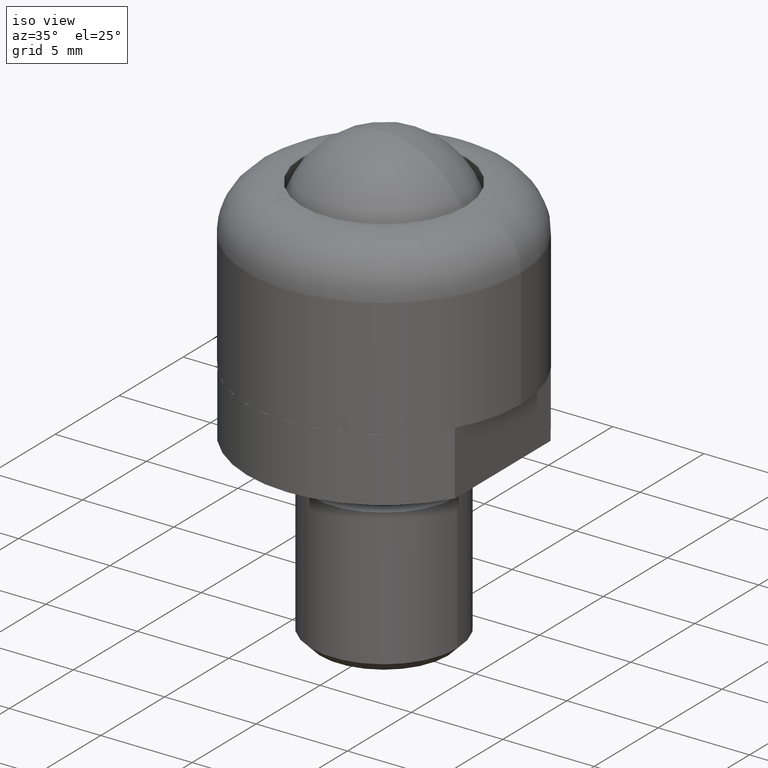
[diagram: clean part render]
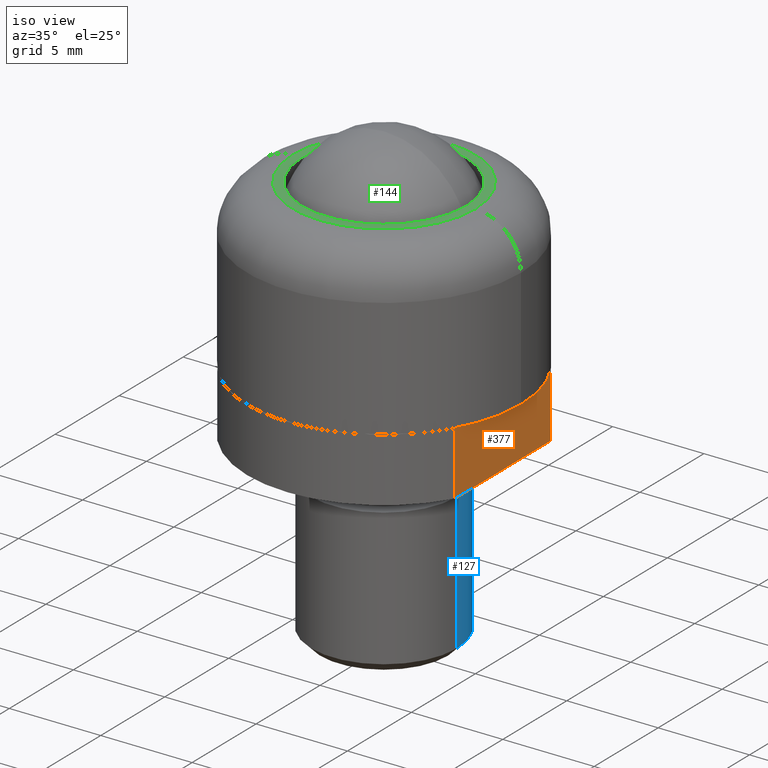
[diagram: same view with three faces highlighted in distinct colors, each labeled with its STEP entity id]
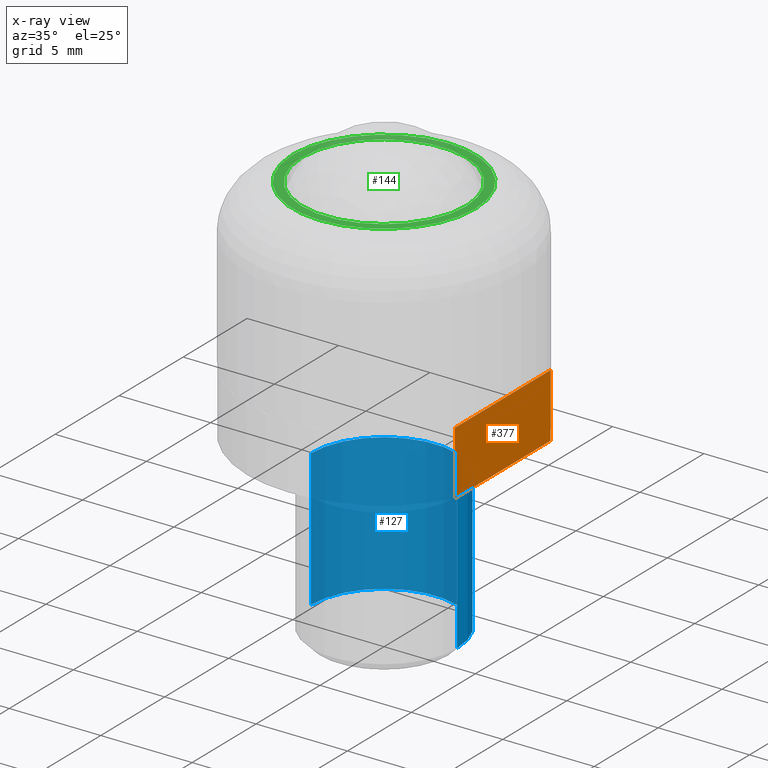
[diagram: x-ray of the same camera — body ghosted, the three highlighted faces saturated]
A machine part, iso view with three faces highlighted in distinct colors.
The next image is the same camera in x-ray (body ghosted, the three faces saturated) — at least one of them is partly hidden behind the body in this view.
Their STEP definitions:

[orange] entity #377 — the highlighted planar face has unit normal (1, 0, 0).
#1 = CARTESIAN_POINT ( 'NONE',  ( 6.500000000000000000, 3.741657386773960000, -1000.000000000000000 ) ) ;
#22 = VECTOR ( 'NONE', #711, 1000.000000000000000 ) ;
#33 = ORIENTED_EDGE ( 'NONE', *, *, #359, .F. ) ;
#74 = DIRECTION ( 'NONE',  ( 0.0000000000000000000, 0.0000000000000000000, 1.000000000000000000 ) ) ;
#107 = PLANE ( 'NONE',  #815 ) ;
#207 = EDGE_CURVE ( 'NONE', #853, #435, #232, .T. ) ;
#208 = VERTEX_POINT ( 'NONE', #306 ) ;
#218 = LINE ( 'NONE', #424, #22 ) ;
#232 = LINE ( 'NONE', #391, #677 ) ;
#237 = CARTESIAN_POINT ( 'NONE',  ( 6.500000000000000000, -3.741657386773955100, -1000.000000000000000 ) ) ;
#247 = ORIENTED_EDGE ( 'NONE', *, *, #881, .T. ) ;
#269 = CARTESIAN_POINT ( 'NONE',  ( 6.500000000000000000, 3.741657386773960000, 0.0000000000000000000 ) ) ;
#291 = VERTEX_POINT ( 'NONE', #482 ) ;
#306 = CARTESIAN_POINT ( 'NONE',  ( 6.500000000000000000, -3.741657386773955100, -3.499999999999950300 ) ) ;
#359 = EDGE_CURVE ( 'NONE', #208, #853, #578, .T. ) ;
#372 = VECTOR ( 'NONE', #845, 1000.000000000000000 ) ;
#377 = ADVANCED_FACE ( 'NONE', ( #749 ), #107, .T. ) ;
#391 = CARTESIAN_POINT ( 'NONE',  ( 6.500000000000000000, -3.741657386773940000, 0.0000000000000000000 ) ) ;
#408 = DIRECTION ( 'NONE',  ( -0.0000000000000000000, 1.000000000000000000, -0.0000000000000000000 ) ) ;
#424 = CARTESIAN_POINT ( 'NONE',  ( 6.500000000000000000, -3.741657386773940000, -3.499999999999950300 ) ) ;
#435 = VERTEX_POINT ( 'NONE', #269 ) ;
#482 = CARTESIAN_POINT ( 'NONE',  ( 6.500000000000000000, 3.741657386773960000, -3.499999999999950300 ) ) ;
#542 = VECTOR ( 'NONE', #74, 1000.000000000000000 ) ;
#578 = LINE ( 'NONE', #237, #372 ) ;
#593 = LINE ( 'NONE', #1, #542 ) ;
#611 = CARTESIAN_POINT ( 'NONE',  ( 6.500000000000000000, -3.741657386773955100, 0.0000000000000000000 ) ) ;
#622 = DIRECTION ( 'NONE',  ( 0.0000000000000000000, 0.0000000000000000000, -1.000000000000000000 ) ) ;
#658 = ORIENTED_EDGE ( 'NONE', *, *, #207, .F. ) ;
#677 = VECTOR ( 'NONE', #408, 1000.000000000000000 ) ;
#684 = DIRECTION ( 'NONE',  ( 1.000000000000000000, 0.0000000000000000000, 0.0000000000000000000 ) ) ;
#711 = DIRECTION ( 'NONE',  ( -0.0000000000000000000, 1.000000000000000000, -0.0000000000000000000 ) ) ;
#749 = FACE_OUTER_BOUND ( 'NONE', #812, .T. ) ;
#784 = EDGE_CURVE ( 'NONE', #208, #291, #218, .T. ) ;
#806 = ORIENTED_EDGE ( 'NONE', *, *, #784, .T. ) ;
#812 = EDGE_LOOP ( 'NONE', ( #658, #33, #806, #247 ) ) ;
#815 = AXIS2_PLACEMENT_3D ( 'NONE', #862, #684, #622 ) ;
#845 = DIRECTION ( 'NONE',  ( 0.0000000000000000000, 0.0000000000000000000, 1.000000000000000000 ) ) ;
#853 = VERTEX_POINT ( 'NONE', #611 ) ;
#862 = CARTESIAN_POINT ( 'NONE',  ( 6.500000000000000000, -3.741657386773940000, -1000.000000000000000 ) ) ;
#881 = EDGE_CURVE ( 'NONE', #291, #435, #593, .T. ) ;

[blue] entity #127 — the highlighted cylindrical surface (partial cylindrical patch) has radius 4 mm, axis along (0, 0, -1).
#50 = ORIENTED_EDGE ( 'NONE', *, *, #275, .T. ) ;
#63 = LINE ( 'NONE', #521, #826 ) ;
#127 = ADVANCED_FACE ( 'NONE', ( #846 ), #567, .T. ) ;
#165 = EDGE_CURVE ( 'NONE', #667, #694, #187, .T. ) ;
#187 = CIRCLE ( 'NONE', #191, 4.000000000000000000 ) ;
#191 = AXIS2_PLACEMENT_3D ( 'NONE', #833, #468, #602 ) ;
#193 = VERTEX_POINT ( 'NONE', #617 ) ;
#261 = CARTESIAN_POINT ( 'NONE',  ( 0.0000000000000000000, 0.0000000000000000000, 0.0000000000000000000 ) ) ;
#275 = EDGE_CURVE ( 'NONE', #694, #716, #495, .T. ) ;
#303 = DIRECTION ( 'NONE',  ( 0.0000000000000000000, 0.0000000000000000000, -1.000000000000000000 ) ) ;
#316 = EDGE_LOOP ( 'NONE', ( #370, #50, #576, #942 ) ) ;
#318 = EDGE_CURVE ( 'NONE', #193, #716, #536, .T. ) ;
#370 = ORIENTED_EDGE ( 'NONE', *, *, #165, .T. ) ;
#371 = DIRECTION ( 'NONE',  ( 0.0000000000000000000, 0.0000000000000000000, -1.000000000000000000 ) ) ;
#398 = CARTESIAN_POINT ( 'NONE',  ( 4.000000000000000000, 0.0000000000000000000, -12.99999999999986100 ) ) ;
#418 = CARTESIAN_POINT ( 'NONE',  ( 4.000000000000000000, 4.898587196589412800E-016, -5.499999999999899600 ) ) ;
#465 = EDGE_CURVE ( 'NONE', #667, #193, #63, .T. ) ;
#468 = DIRECTION ( 'NONE',  ( 0.0000000000000000000, 0.0000000000000000000, -1.000000000000000000 ) ) ;
#495 = LINE ( 'NONE', #637, #532 ) ;
#511 = AXIS2_PLACEMENT_3D ( 'NONE', #907, #850, #691 ) ;
#521 = CARTESIAN_POINT ( 'NONE',  ( -4.000000000000000000, 0.0000000000000000000, 0.0000000000000000000 ) ) ;
#532 = VECTOR ( 'NONE', #303, 1000.000000000000000 ) ;
#536 = CIRCLE ( 'NONE', #511, 4.000000000000000000 ) ;
#557 = DIRECTION ( 'NONE',  ( -1.000000000000000000, 0.0000000000000000000, 0.0000000000000000000 ) ) ;
#567 = CYLINDRICAL_SURFACE ( 'NONE', #945, 4.000000000000000000 ) ;
#576 = ORIENTED_EDGE ( 'NONE', *, *, #318, .F. ) ;
#602 = DIRECTION ( 'NONE',  ( -1.000000000000000000, 0.0000000000000000000, 0.0000000000000000000 ) ) ;
#617 = CARTESIAN_POINT ( 'NONE',  ( -4.000000000000000000, 4.898587196589412800E-016, -12.99999999999986100 ) ) ;
#637 = CARTESIAN_POINT ( 'NONE',  ( 4.000000000000000000, 4.898587196589412800E-016, 0.0000000000000000000 ) ) ;
#667 = VERTEX_POINT ( 'NONE', #865 ) ;
#691 = DIRECTION ( 'NONE',  ( -1.000000000000000000, 0.0000000000000000000, 0.0000000000000000000 ) ) ;
#694 = VERTEX_POINT ( 'NONE', #418 ) ;
#716 = VERTEX_POINT ( 'NONE', #398 ) ;
#826 = VECTOR ( 'NONE', #371, 1000.000000000000000 ) ;
#833 = CARTESIAN_POINT ( 'NONE',  ( 0.0000000000000000000, 0.0000000000000000000, -5.499999999999899600 ) ) ;
#846 = FACE_OUTER_BOUND ( 'NONE', #316, .T. ) ;
#850 = DIRECTION ( 'NONE',  ( 0.0000000000000000000, 0.0000000000000000000, -1.000000000000000000 ) ) ;
#865 = CARTESIAN_POINT ( 'NONE',  ( -4.000000000000000000, 0.0000000000000000000, -5.499999999999899600 ) ) ;
#907 = CARTESIAN_POINT ( 'NONE',  ( 0.0000000000000000000, 0.0000000000000000000, -12.99999999999986100 ) ) ;
#924 = DIRECTION ( 'NONE',  ( 0.0000000000000000000, 0.0000000000000000000, -1.000000000000000000 ) ) ;
#942 = ORIENTED_EDGE ( 'NONE', *, *, #465, .F. ) ;
#945 = AXIS2_PLACEMENT_3D ( 'NONE', #261, #924, #557 ) ;

[green] entity #144 — the highlighted planar face has unit normal (0, 0, -1).
#38 = AXIS2_PLACEMENT_3D ( 'NONE', #256, #105, #548 ) ;
#44 = ORIENTED_EDGE ( 'NONE', *, *, #308, .F. ) ;
#89 = EDGE_LOOP ( 'NONE', ( #915, #44 ) ) ;
#92 = EDGE_LOOP ( 'NONE', ( #940, #146 ) ) ;
#95 = VERTEX_POINT ( 'NONE', #268 ) ;
#105 = DIRECTION ( 'NONE',  ( 0.0000000000000000000, 0.0000000000000000000, -1.000000000000000000 ) ) ;
#110 = DIRECTION ( 'NONE',  ( 0.0000000000000000000, 0.0000000000000000000, -1.000000000000000000 ) ) ;
#114 = EDGE_CURVE ( 'NONE', #808, #148, #365, .T. ) ;
#144 = ADVANCED_FACE ( 'NONE', ( #654, #240 ), #320, .F. ) ;
#146 = ORIENTED_EDGE ( 'NONE', *, *, #114, .T. ) ;
#148 = VERTEX_POINT ( 'NONE', #629 ) ;
#153 = DIRECTION ( 'NONE',  ( 0.0000000000000000000, 0.0000000000000000000, -1.000000000000000000 ) ) ;
#230 = CARTESIAN_POINT ( 'NONE',  ( 5.000000000000000000, 7.654042494670956600E-016, 9.000000000000000000 ) ) ;
#240 = FACE_OUTER_BOUND ( 'NONE', #89, .T. ) ;
#256 = CARTESIAN_POINT ( 'NONE',  ( 0.0000000000000000000, 0.0000000000000000000, 9.000000000000000000 ) ) ;
#268 = CARTESIAN_POINT ( 'NONE',  ( -5.000000000000000000, 0.0000000000000000000, 9.000000000000000000 ) ) ;
#308 = EDGE_CURVE ( 'NONE', #571, #95, #385, .T. ) ;
#320 = PLANE ( 'NONE',  #38 ) ;
#321 = DIRECTION ( 'NONE',  ( -1.000000000000000000, 0.0000000000000000000, 0.0000000000000000000 ) ) ;
#365 = CIRCLE ( 'NONE', #662, 4.498888751680794900 ) ;
#367 = AXIS2_PLACEMENT_3D ( 'NONE', #916, #546, #321 ) ;
#369 = CIRCLE ( 'NONE', #564, 5.000000000000000000 ) ;
#373 = DIRECTION ( 'NONE',  ( 0.0000000000000000000, 0.0000000000000000000, -1.000000000000000000 ) ) ;
#385 = CIRCLE ( 'NONE', #367, 5.000000000000000000 ) ;
#478 = CARTESIAN_POINT ( 'NONE',  ( 4.498888751680794900, 5.509549709465917700E-016, 9.000000000000000000 ) ) ;
#513 = CIRCLE ( 'NONE', #764, 4.498888751680794900 ) ;
#546 = DIRECTION ( 'NONE',  ( 0.0000000000000000000, 0.0000000000000000000, -1.000000000000000000 ) ) ;
#548 = DIRECTION ( 'NONE',  ( -1.000000000000000000, 0.0000000000000000000, 0.0000000000000000000 ) ) ;
#553 = DIRECTION ( 'NONE',  ( -1.000000000000000000, 0.0000000000000000000, 0.0000000000000000000 ) ) ;
#564 = AXIS2_PLACEMENT_3D ( 'NONE', #814, #373, #892 ) ;
#571 = VERTEX_POINT ( 'NONE', #230 ) ;
#629 = CARTESIAN_POINT ( 'NONE',  ( -4.498888751680794900, 0.0000000000000000000, 9.000000000000000000 ) ) ;
#654 = FACE_BOUND ( 'NONE', #92, .T. ) ;
#662 = AXIS2_PLACEMENT_3D ( 'NONE', #713, #110, #553 ) ;
#687 = CARTESIAN_POINT ( 'NONE',  ( 0.0000000000000000000, 0.0000000000000000000, 9.000000000000000000 ) ) ;
#713 = CARTESIAN_POINT ( 'NONE',  ( 0.0000000000000000000, 0.0000000000000000000, 9.000000000000000000 ) ) ;
#764 = AXIS2_PLACEMENT_3D ( 'NONE', #687, #153, #831 ) ;
#808 = VERTEX_POINT ( 'NONE', #478 ) ;
#814 = CARTESIAN_POINT ( 'NONE',  ( 0.0000000000000000000, 0.0000000000000000000, 9.000000000000000000 ) ) ;
#831 = DIRECTION ( 'NONE',  ( -1.000000000000000000, 0.0000000000000000000, 0.0000000000000000000 ) ) ;
#876 = EDGE_CURVE ( 'NONE', #95, #571, #369, .T. ) ;
#892 = DIRECTION ( 'NONE',  ( -1.000000000000000000, 0.0000000000000000000, 0.0000000000000000000 ) ) ;
#915 = ORIENTED_EDGE ( 'NONE', *, *, #876, .F. ) ;
#916 = CARTESIAN_POINT ( 'NONE',  ( 0.0000000000000000000, 0.0000000000000000000, 9.000000000000000000 ) ) ;
#935 = EDGE_CURVE ( 'NONE', #148, #808, #513, .T. ) ;
#940 = ORIENTED_EDGE ( 'NONE', *, *, #935, .T. ) ;